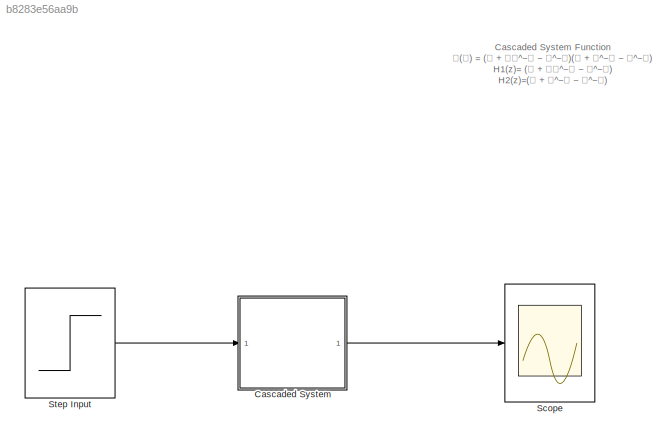
MODEL slx_b8283e56aa9b
KIND model
CONFIG AbsTol = auto
CONFIG EnableMultiTasking = off
CONFIG FixedStep = auto
CONFIG MaxStep = auto
CONFIG MinStep = auto
CONFIG RelTol = 1e-3
CONFIG SampleTimeConstraint = Unconstrained
CONFIG Solver = VariableStepAuto
CONFIG SolverName = VariableStepAuto
CONFIG StartTime = 0.0
CONFIG StopTime = 10.0
WORKSPACE source: mxarray member
WORKSPACE A: Simulink.Parameter (value not decoded)
WORKSPACE B: Simulink.Parameter (value not decoded)
WORKSPACE C: Simulink.Parameter (value not decoded)
WORKSPACE D: Simulink.Parameter (value not decoded)
WORKSPACE E: Simulink.Parameter (value not decoded)
WORKSPACE F: Simulink.Parameter (value not decoded)
BLOCK [ModelReference] Cascaded System
  ModelNameDialog = Subsystem
  ModelReferenceVersion = 1.5
  Ports = [1, 1]
BLOCK [Scope] Scope
  Floating = off
  NumInputPorts = 1
  Ports = [1]
  ScopeSpecificationString = Simulink.scopes.TimeScopeBlockCfg('CurrentConfiguration', extmgr.ConfigurationSet(extmgr.Configuration('Core','General UI',true),extmgr.Configuration('Core','Source UI',true),extmgr.Configuration('Sources','WiredSimulink',true),extmgr.Configuration('Visuals','Time Domain',true,'SerializedDisplays',{struct('MinYLimReal','-0.5','MaxYLimReal','4.5','YLabelReal','','MinYLimMag','0.00000','MaxYLimMag',...<+1340ch>
BLOCK [Step] Step Input
  SampleTime = 0
ANNOTATION (root): Cascaded System Function 𝐇(𝐳) = (𝟏 + 𝟐𝐳^−𝟏 − 𝐳^−𝟐)(𝟏 + 𝐳^−𝟏 − 𝐳^−𝟐) H1(z)= (𝟏 + 𝟐𝐳^−𝟏 − 𝐳^−𝟐) H2(z)=(𝟏 + 𝐳^−𝟏 − 𝐳^−𝟐)
LINE Cascaded System:1 -> Scope:1
LINE Step Input:1 -> Cascaded System:1
